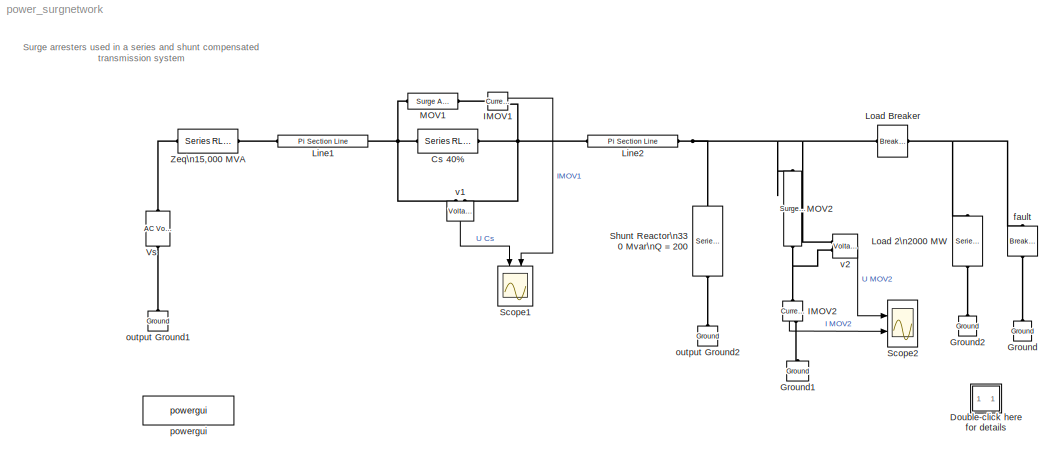
MODEL power_surgnetwork
KIND model
BLOCK [Reference] Cs 40%  REF=powerlib/Elements/Series RLC Branch
  AttributesFormatString = \\n
  Capacitance = 101.4e-6
  Inductance = 0
  LConnTagsString = __new0
  LeftPortType = p1
  Measurements = None
  PhysicalDomain = powersysdomain
  Ports = [0, 0, 0, 0, 0, 1, 1]
  RConnTagsString = __new0
  Resistance = 0
  RightPortType = p1
  SourceBlock = powerlib/Elements/Series RLC Branch
  SourceType = Series RLC Branch
  SubClassName = unknown
BLOCK [SubSystem] Double-click here for details
  MaskDisplay = disp('?')
  MaskIconFrame = on
  MaskIconOpaque = on
  MaskIconRotate = none
  MaskIconUnits = autoscale
  MinAlgLoopOccurrences = off
  Ports = []
  RTWSystemCode = Auto
  TreatAsAtomicUnit = off
BLOCK [Reference] Ground  REF=powerlib/Elements/Ground
  AttributesFormatString = \\n
  LConnTagsString = a
  LeftPortType = p1
  PhysicalDomain = powersysdomain
  Ports = [0, 0, 0, 0, 0, 1]
  RightPortType = p1
  SourceBlock = powerlib/Elements/Ground
  SourceType = Ground
  SubClassName = unknown
BLOCK [Reference] Ground1  REF=powerlib/Elements/Ground
  AttributesFormatString = \\n
  LConnTagsString = a
  LeftPortType = p1
  PhysicalDomain = powersysdomain
  Ports = [0, 0, 0, 0, 0, 1]
  RightPortType = p1
  SourceBlock = powerlib/Elements/Ground
  SourceType = Ground
  SubClassName = unknown
BLOCK [Reference] Ground2  REF=powerlib/Elements/Ground
  AttributesFormatString = \\n
  LConnTagsString = a
  LeftPortType = p1
  PhysicalDomain = powersysdomain
  Ports = [0, 0, 0, 0, 0, 1]
  RightPortType = p1
  SourceBlock = powerlib/Elements/Ground
  SourceType = Ground
  SubClassName = unknown
BLOCK [Reference] IMOV1  REF=powerlib/Measurements/Current Measurement
  AttributesFormatString = \\n
  OutputType = Magnitude
  PSBequivalent = 0
  PhasorSimulation = off
  Ports = [0, 1, 0, 0, 0, 1, 1]
  ShowPortLabels = on
  SourceBlock = powerlib/Measurements/Current Measurement
  SourceType = Current Measurement
  Tag = PoWeRsYsTeMmEaSuReMeNt
BLOCK [Reference] IMOV2  REF=powerlib/Measurements/Current Measurement
  AttributesFormatString = \\n
  OutputType = Magnitude
  PSBequivalent = 0
  PhasorSimulation = off
  Ports = [0, 1, 0, 0, 0, 1, 1]
  ShowPortLabels = on
  SourceBlock = powerlib/Measurements/Current Measurement
  SourceType = Current Measurement
  Tag = PoWeRsYsTeMmEaSuReMeNt
BLOCK [Reference] Line1  REF=powerlib/Elements/Pi Section Line
  AttributesFormatString = \\n
  Capacitance = 13.41e-9
  Frequency = 60
  Inductance = 0.8674e-3
  LConnTagsString = __new0
  LeftPortType = p1
  Length = 100
  Measurements = None
  PhysicalDomain = powersysdomain
  PiSections = 2
  Ports = [0, 0, 0, 0, 0, 1, 1]
  RConnTagsString = __new0
  Resistance = 0.011
  RightPortType = p1
  SourceBlock = powerlib/Elements/Pi Section Line
  SourceType = Pi Section Line
  SubClassName = unknown
BLOCK [Reference] Line2  REF=powerlib/Elements/Pi Section Line
  AttributesFormatString = \\n
  Capacitance = 13.41e-9
  Frequency = 60
  Inductance = 0.8674e-3
  LConnTagsString = __new0
  LeftPortType = p1
  Length = 100
  Measurements = None
  PhysicalDomain = powersysdomain
  PiSections = 2
  Ports = [0, 0, 0, 0, 0, 1, 1]
  RConnTagsString = __new0
  Resistance = 0.011
  RightPortType = p1
  SourceBlock = powerlib/Elements/Pi Section Line
  SourceType = Pi Section Line
  SubClassName = unknown
BLOCK [Reference] Load 2\n2000 MW  REF=powerlib/Elements/Series RLC Load
  ActivePower = 2000e6/3
  AttributesFormatString = \\n
  CapacitivePower = 0
  InductivePower = 0
  LConnTagsString = a
  LeftPortType = p1
  Measurements = None
  NominalFrequency = 60
  NominalVoltage = 735e3/sqrt(3)
  PhysicalDomain = powersysdomain
  Ports = [0, 0, 0, 0, 0, 1, 1]
  RConnTagsString = __new0
  RightPortType = p1
  SourceBlock = powerlib/Elements/Series RLC Load
  SourceType = Series RLC Load
  SubClassName = unknown
BLOCK [Reference] Load Breaker  REF=powerlib/Elements/Breaker
  AttributesFormatString = \\n
  BreakerResistance = 0.1
  External = off
  InitialState = 1
  Measurements = None
  Ports = [0, 0, 0, 0, 0, 1, 1]
  ShowPortLabels = on
  SnubberCapacitance = 0
  SnubberResistance = inf
  SourceBlock = powerlib/Elements/Breaker
  SourceType = Breaker
  SwitchingTimes = [ 100e-3]
BLOCK [Reference] MOV1  REF=powerlib/Elements/Surge Arrester
  AttributesFormatString = \\n
  BreakLoop = on
  Columns = 30
  Measurements = None
  MoreParameters = off
  Ports = [0, 0, 0, 0, 0, 1, 1]
  ProtectionVoltage = 185e3
  ReferenceCurrent = 500
  Segment1 = [.955 50]
  Segment2 = [1.0 25]
  Segment3 = [.9915 16.5]
  ShowPortLabels = on
  SourceBlock = powerlib/Elements/Surge Arrester
  SourceType = Surge Arrester
BLOCK [Reference] MOV2  REF=powerlib/Elements/Surge Arrester
  AttributesFormatString = \\n
  BreakLoop = on
  Columns = 2
  Measurements = None
  MoreParameters = off
  Ports = [0, 0, 0, 0, 0, 1, 1]
  ProtectionVoltage = 1081e3
  ReferenceCurrent = 500
  Segment1 = [.955 50]
  Segment2 = [1.0 25]
  Segment3 = [.9915 16.5]
  ShowPortLabels = on
  SourceBlock = powerlib/Elements/Surge Arrester
  SourceType = Surge Arrester
BLOCK [Scope] Scope1
  DataFormat = Array
  LimitDataPoints = off
  MaxDataPoints = 500000
  NumInputPorts = 2
  Ports = [2]
  TimeRange = 0.2
  YMax = 200000~10000
  YMin = -200000~-5000
BLOCK [Scope] Scope2
  DataFormat = Array
  LimitDataPoints = off
  MaxDataPoints = 500000
  NumInputPorts = 2
  Ports = [2]
  TimeRange = 0.2
  YMax = 2e+006~1000
  YMin = -2e+006~0
BLOCK [Reference] Shunt Reactor\n330 Mvar\nQ = 200  REF=powerlib/Elements/Series RLC Load
  ActivePower = 330e6/3/200
  AttributesFormatString = \\n
  CapacitivePower = 0
  InductivePower = 330e6/3
  LConnTagsString = a
  LeftPortType = p1
  Measurements = None
  NominalFrequency = 60
  NominalVoltage = 735e3/sqrt(3)
  PhysicalDomain = powersysdomain
  Ports = [0, 0, 0, 0, 0, 1, 1]
  RConnTagsString = __new0
  RightPortType = p1
  SourceBlock = powerlib/Elements/Series RLC Load
  SourceType = Series RLC Load
  SubClassName = unknown
BLOCK [Reference] Vs  REF=powerlib/Electrical\nSources/AC Voltage Source
  Amplitude = 735e3/sqrt(3)*sqrt(2)
  AttributesFormatString = \\n
  Description = source block
  Frequency = 60
  Measurements = None
  Phase = 0
  Ports = [0, 0, 0, 0, 0, 1, 1]
  SampleTime = 0
  ShowPortLabels = on
  SourceBlock = powerlib/Electrical\nSources/AC Voltage Source
  SourceType = AC Voltage Source
BLOCK [Reference] Zeq\n15,000 MVA  REF=powerlib/Elements/Series RLC Branch
  AttributesFormatString = \\n
  Capacitance = inf
  Inductance = 95.5e-3
  LConnTagsString = __new0
  LeftPortType = p1
  Measurements = None
  PhysicalDomain = powersysdomain
  Ports = [0, 0, 0, 0, 0, 1, 1]
  RConnTagsString = __new0
  Resistance = 3.6
  RightPortType = p1
  SourceBlock = powerlib/Elements/Series RLC Branch
  SourceType = Series RLC Branch
  SubClassName = unknown
BLOCK [Reference] fault  REF=powerlib/Elements/Breaker
  AttributesFormatString = \\n
  BreakerResistance = 1
  External = off
  InitialState = 0
  Measurements = None
  Ports = [0, 0, 0, 0, 0, 1, 1]
  ShowPortLabels = on
  SnubberCapacitance = 0
  SnubberResistance = inf
  SourceBlock = powerlib/Elements/Breaker
  SourceType = Breaker
  SwitchingTimes = [ 30e-3 300e-3]
BLOCK [Reference] output Ground1  REF=powerlib/Elements/Ground
  AttributesFormatString = \\n
  LConnTagsString = a
  LeftPortType = p1
  PhysicalDomain = powersysdomain
  Ports = [0, 0, 0, 0, 0, 1]
  RightPortType = p1
  SourceBlock = powerlib/Elements/Ground
  SourceType = Ground
  SubClassName = unknown
BLOCK [Reference] output Ground2  REF=powerlib/Elements/Ground
  AttributesFormatString = \\n
  LConnTagsString = a
  LeftPortType = p1
  PhysicalDomain = powersysdomain
  Ports = [0, 0, 0, 0, 0, 1]
  RightPortType = p1
  SourceBlock = powerlib/Elements/Ground
  SourceType = Ground
  SubClassName = unknown
BLOCK [Reference] powergui  REF=powerlib/powergui
  DisplayStyle = off
  Frange = logspace(0,3,50)
  FreqAxis = off
  MaxFrequency = 1000
  Ports = []
  Priority = 2
  RmsSteady = 1
  ShowPortLabels = on
  SourceBlock = powerlib/powergui
  SourceType = PSB option menu block
  StartTime = 0.0
  Ts = 0
  Xlog = off
  Ylog = off
  ZoomFFT = on
  cycles = 1
  display = off
  echomessages = on
  frequency = 60
  frequencyindice = 1
  frequencyindicesteady = 1
  fundamental = 60
  methode = off
  save = off
  variable = ZData
BLOCK [Reference] v1  REF=powerlib/Measurements/Voltage Measurement
  AttributesFormatString = \\n
  OutputType = Magnitude
  PSBequivalent = 0
  PhasorSimulation = off
  Ports = [0, 1, 0, 0, 0, 2]
  ShowPortLabels = on
  SourceBlock = powerlib/Measurements/Voltage Measurement
  SourceType = Voltage Measurement
  Tag = PoWeRsYsTeMmEaSuReMeNt
BLOCK [Reference] v2  REF=powerlib/Measurements/Voltage Measurement
  AttributesFormatString = \\n
  OutputType = Magnitude
  PSBequivalent = 0
  PhasorSimulation = off
  Ports = [0, 1, 0, 0, 0, 2]
  ShowPortLabels = on
  SourceBlock = powerlib/Measurements/Voltage Measurement
  SourceType = Voltage Measurement
  Tag = PoWeRsYsTeMmEaSuReMeNt
ANNOTATION (root): Surge arresters used in a series and shunt compensated\ntransmission system
ANNOTATION Double-click here for details: A 735 kV equivalent transmission systems feeds a load through a 200 km transmission line. The line is series compensated at the\nmiddle point and shunt compensated at its receiving end. A fault is applied at the load terminals. \nThe fault is cleared by load breaker opening. For simplification purpose, only one phase of the transmission system is modelled. \nAll parameters correspond to positive-s...<+857ch>
ANNOTATION Double-click here for details: Circuit Description
ANNOTATION Double-click here for details: Demonstration
ANNOTATION Double-click here for details: G. Sybille (Hydro-Quebec)
ANNOTATION Double-click here for details: Start the simulation. Observe the MOV voltages and currents on Scope1 and Scope2.\n\nAt fault application the capacitor voltage increases and MOV1 conducts. Peak current reaches 8.4 kA on the 2nd pulse\n2 cycles after fault application, the MOV current is symetric (4.5 kA current pulses at every half cycle).\n\nAt fault clearing, the overvoltage produced at bus B2 is limited by the shunt MOV2 .\nT...<+60ch>
ANNOTATION Double-click here for details: This demonstration illustrates use of surge arresters in a\nseries and shunt compensated 735 kV AC transmission system
LINE IMOV1:1 -> Scope1:2
LINE IMOV2:1 -> Scope2:2
LINE v1:1 -> Scope1:1
LINE v2:1 -> Scope2:1
PNET net1: Cs 40%:LConn1 -- Line1:RConn1 -- MOV1:LConn1 -- v1:LConn1
PNET net2: Cs 40%:RConn1 -- IMOV1:RConn1 -- Line2:LConn1 -- v1:LConn2
PLINE Ground1:LConn1 -- IMOV2:RConn1
PLINE Ground2:LConn1 -- Load 2\n2000 MW:RConn1
PLINE Ground:LConn1 -- fault:RConn1
PLINE IMOV1:LConn1 -- MOV1:RConn1
PNET net3: IMOV2:LConn1 -- MOV2:RConn1 -- v2:LConn2
PLINE Line1:LConn1 -- Zeq\n15,000 MVA:RConn1
PNET net4: Line2:RConn1 -- Load Breaker:LConn1 -- MOV2:LConn1 -- Shunt Reactor\n330 Mvar\nQ = 200:RConn1 -- v2:LConn1
PNET net5: Load 2\n2000 MW:LConn1 -- Load Breaker:RConn1 -- fault:LConn1
PLINE Shunt Reactor\n330 Mvar\nQ = 200:LConn1 -- output Ground2:LConn1
PLINE Vs:LConn1 -- output Ground1:LConn1
PLINE Vs:RConn1 -- Zeq\n15,000 MVA:LConn1
note: PNET lines group multi-terminal physical nets as a canonical sorted terminal list (undirected conserving connections); 2-terminal nets keep the pairwise PLINE form
